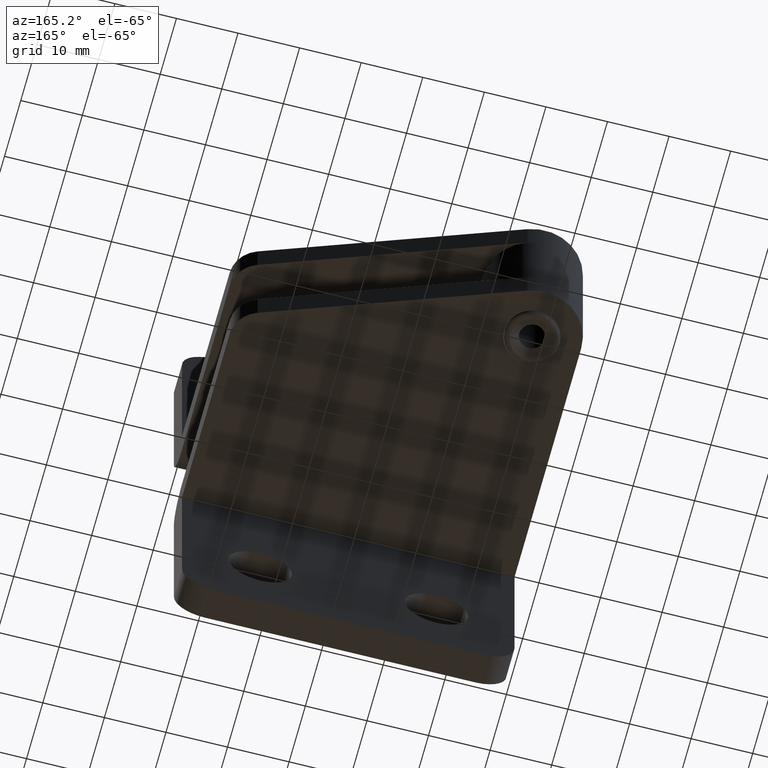
[diagram: clean part render]
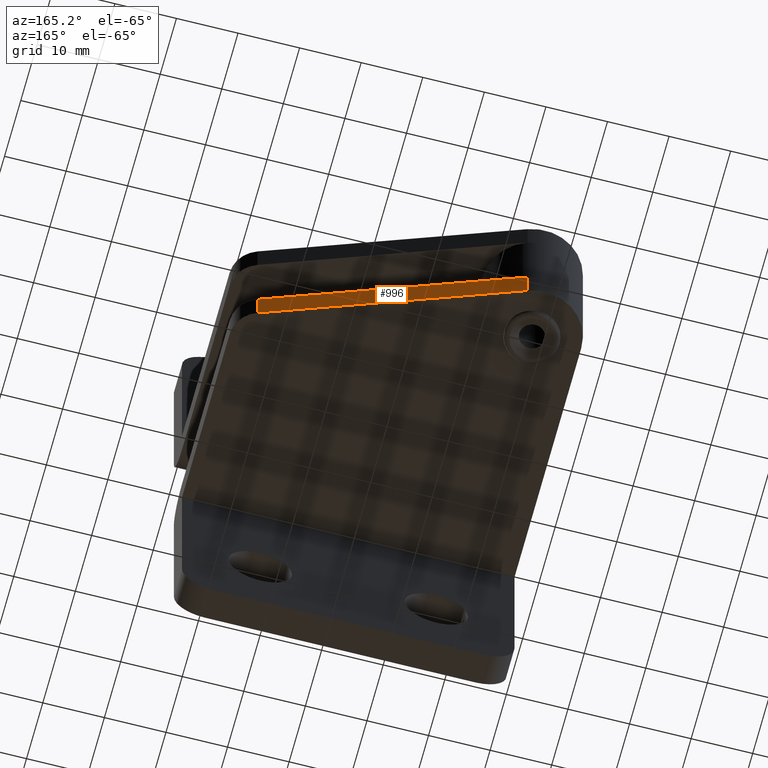
[diagram: same view with one face highlighted and labeled with its STEP entity id]
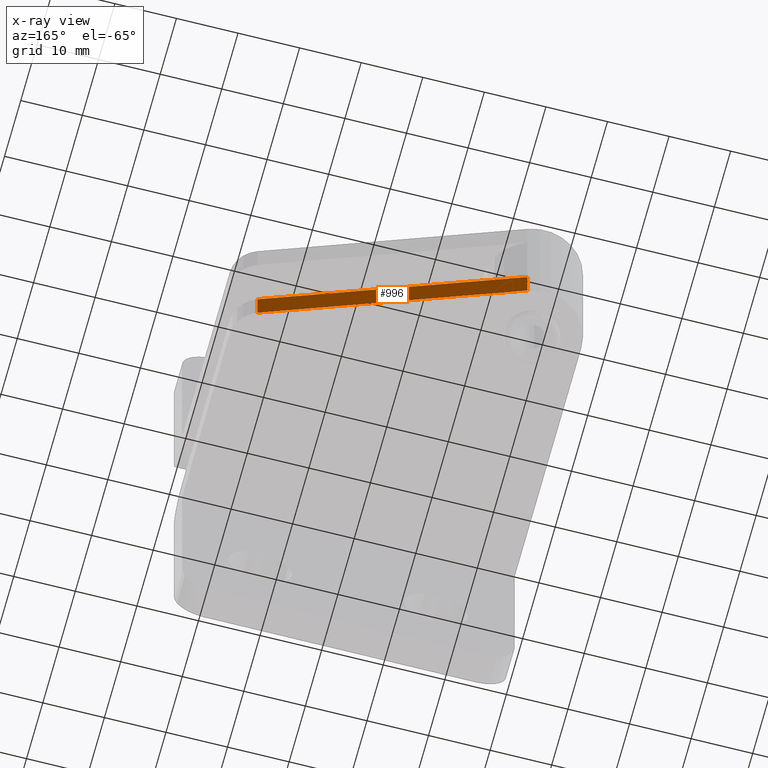
[diagram: x-ray of the same camera — body ghosted, the highlighted face saturated]
A machine part, auxiliary view. The second image highlights one B-rep face of the part: STEP entity #996.
The next image is the same camera in x-ray: the body ghosted, the highlighted face saturated — about 0% of this face is hidden behind the body in this view.
In plain terms, the highlighted planar face has unit normal (0.342, 0.9397, 0).
Its self-contained STEP definition (entity closure, byte-faithful):
#5 = VECTOR ( 'NONE', #1691, 1000.000000000000100 ) ;
#53 = DIRECTION ( 'NONE',  ( -0.9396944815282641800, 0.3420150309347918000, 0.0000000000000000000 ) ) ;
#96 = AXIS2_PLACEMENT_3D ( 'NONE', #1103, #580, #219 ) ;
#177 = CARTESIAN_POINT ( 'NONE',  ( 10.73612024747827200, 53.51755585222601800, -12.79999999999999900 ) ) ;
#188 = CARTESIAN_POINT ( 'NONE',  ( 10.73612024747827200, 53.51755585222601800, 36.20000000000005300 ) ) ;
#212 = CARTESIAN_POINT ( 'NONE',  ( 48.78418620640027800, 39.66942679352818100, -12.79999999999999900 ) ) ;
#219 = DIRECTION ( 'NONE',  ( 0.9396944815282654000, -0.3420150309347883600, 0.0000000000000000000 ) ) ;
#242 = VERTEX_POINT ( 'NONE', #177 ) ;
#265 = VERTEX_POINT ( 'NONE', #488 ) ;
#288 = CARTESIAN_POINT ( 'NONE',  ( 10.73612024747827200, 53.51755585222601800, -17.79999999999994700 ) ) ;
#307 = CARTESIAN_POINT ( 'NONE',  ( 50.71007515467413600, 38.96847240764139300, 36.20000000000005300 ) ) ;
#436 = ORIENTED_EDGE ( 'NONE', *, *, #570, .F. ) ;
#488 = CARTESIAN_POINT ( 'NONE',  ( 50.71007515467413600, 38.96847240764139300, -12.79999999999999900 ) ) ;
#570 = EDGE_CURVE ( 'NONE', #242, #1537, #904, .T. ) ;
#575 = EDGE_CURVE ( 'NONE', #265, #242, #746, .T. ) ;
#578 = EDGE_CURVE ( 'NONE', #265, #742, #1499, .T. ) ;
#580 = DIRECTION ( 'NONE',  ( 0.3420150309347884100, 0.9396944815282655100, 0.0000000000000000000 ) ) ;
#583 = DIRECTION ( 'NONE',  ( -0.0000000000000000000, 0.0000000000000000000, -1.000000000000000000 ) ) ;
#668 = FACE_OUTER_BOUND ( 'NONE', #1133, .T. ) ;
#742 = VERTEX_POINT ( 'NONE', #1886 ) ;
#746 = LINE ( 'NONE', #212, #5 ) ;
#904 = LINE ( 'NONE', #188, #1652 ) ;
#909 = VECTOR ( 'NONE', #53, 1000.000000000000100 ) ;
#958 = EDGE_CURVE ( 'NONE', #742, #1537, #1111, .T. ) ;
#995 = ORIENTED_EDGE ( 'NONE', *, *, #958, .T. ) ;
#996 = ADVANCED_FACE ( 'NONE', ( #668 ), #1756, .T. ) ;
#997 = DIRECTION ( 'NONE',  ( -0.0000000000000000000, 0.0000000000000000000, -1.000000000000000000 ) ) ;
#1103 = CARTESIAN_POINT ( 'NONE',  ( 50.71007515467413600, 38.96847240764139300, 36.20000000000005300 ) ) ;
#1111 = LINE ( 'NONE', #1390, #909 ) ;
#1133 = EDGE_LOOP ( 'NONE', ( #1391, #1672, #995, #436 ) ) ;
#1390 = CARTESIAN_POINT ( 'NONE',  ( 30.72309770107623800, 46.24301412993372700, -17.79999999999994700 ) ) ;
#1391 = ORIENTED_EDGE ( 'NONE', *, *, #575, .F. ) ;
#1499 = LINE ( 'NONE', #307, #1882 ) ;
#1537 = VERTEX_POINT ( 'NONE', #288 ) ;
#1652 = VECTOR ( 'NONE', #583, 1000.000000000000000 ) ;
#1672 = ORIENTED_EDGE ( 'NONE', *, *, #578, .T. ) ;
#1691 = DIRECTION ( 'NONE',  ( -0.9396944815282654000, 0.3420150309347883600, 0.0000000000000000000 ) ) ;
#1756 = PLANE ( 'NONE',  #96 ) ;
#1882 = VECTOR ( 'NONE', #997, 1000.000000000000000 ) ;
#1886 = CARTESIAN_POINT ( 'NONE',  ( 50.71007515467413600, 38.96847240764139300, -17.79999999999994700 ) ) ;